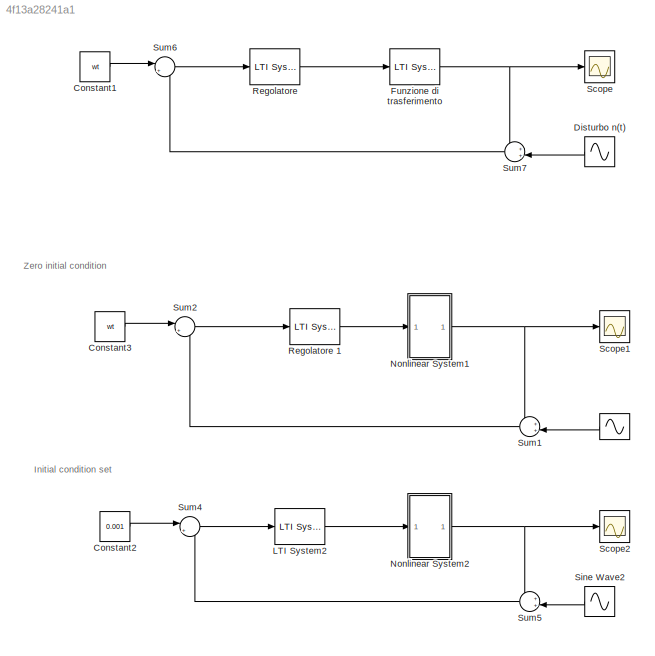
MODEL slx_4f13a28241a1
KIND model
CONFIG AbsTol = auto
CONFIG EnableMultiTasking = off
CONFIG FixedStep = auto
CONFIG MaxStep = auto
CONFIG MinStep = auto
CONFIG RelTol = 1e-3
CONFIG SampleTimeConstraint = Unconstrained
CONFIG Solver = VariableStepAuto
CONFIG SolverName = VariableStepAuto
CONFIG StartTime = 0.0
CONFIG StopTime = 50
BLOCK [Sin]  
  Amplitude = A_n
  Frequency = w_n
  Ports = [0, 1]
  SampleTime = 0
BLOCK [Constant] Constant1
  Value = wt
BLOCK [Constant] Constant2
  Value = 0.001
BLOCK [Constant] Constant3
  Value = wt
BLOCK [Sin] Disturbo n(t)
  Amplitude = A_n
  Frequency = w_n
  Ports = [0, 1]
  SampleTime = 0
BLOCK [Reference] Funzione di trasferimento  REF=cstblocks/LTI System
  Ports = [1, 1]
  SourceBlock = cstblocks/LTI System
  SourceProductBaseCode = CT
  SourceProductName = Control System Toolbox
  SourceType = LTI Block
BLOCK [Reference] LTI System2  REF=cstblocks/LTI System
  Ports = [1, 1]
  SourceBlock = cstblocks/LTI System
  SourceProductBaseCode = CT
  SourceProductName = Control System Toolbox
  SourceType = LTI Block
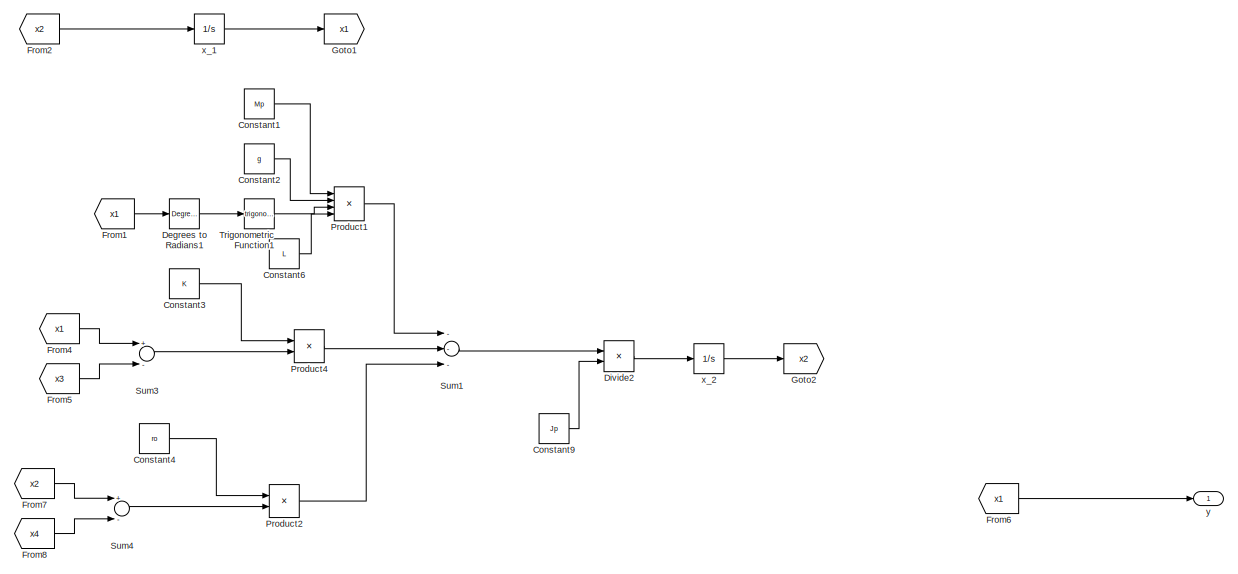
[diagram: Nonlinear System1 - part 1/3, full width, top band]
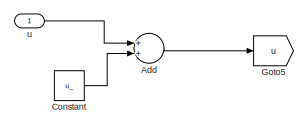
[diagram: Nonlinear System1 - part 2/3, middle left region]
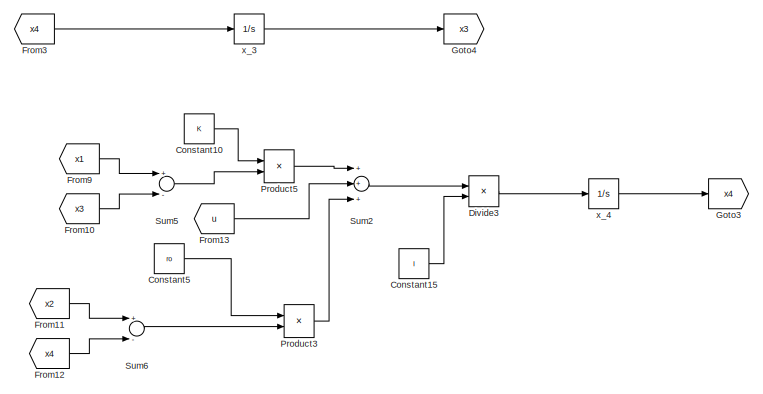
[diagram: Nonlinear System1 - part 3/3, bottom center region]
BLOCK [SubSystem] Nonlinear System1
  Ports = [1, 1]
  RequestExecContextInheritance = off
BLOCK [Sum] Nonlinear System1/Add
  InputSameDT = off
  OutDataTypeStr = Inherit: Inherit via internal rule
  Ports = [2, 1]
  SaturateOnIntegerOverflow = off
BLOCK [Constant] Nonlinear System1/Constant
  Value = u_
BLOCK [Constant] Nonlinear System1/Constant1
  Value = Mp
BLOCK [Constant] Nonlinear System1/Constant10
  Value = K
BLOCK [Constant] Nonlinear System1/Constant15
  Value = I
BLOCK [Constant] Nonlinear System1/Constant2
  Value = g
BLOCK [Constant] Nonlinear System1/Constant3
  Value = K
BLOCK [Constant] Nonlinear System1/Constant4
  Value = ro
BLOCK [Constant] Nonlinear System1/Constant5
  Value = ro
BLOCK [Constant] Nonlinear System1/Constant6
  Value = L
BLOCK [Constant] Nonlinear System1/Constant9
  Value = Jp
BLOCK [Reference] Nonlinear System1/Degrees to Radians1  REF=simulink_extras/Transformations/Degrees to
Radians
  Ports = [1, 1]
  SourceBlock = simulink_extras/Transformations/Degrees to\nRadians
  SourceProductBaseCode = SL
  SourceProductName = Simulink
  SourceType = DegreesToRadians
BLOCK [Product] Nonlinear System1/Divide2
  InputSameDT = off
  Inputs = */
  OutDataTypeStr = Inherit: Inherit via internal rule
  Ports = [2, 1]
  RndMeth = Floor
  SaturateOnIntegerOverflow = off
BLOCK [Product] Nonlinear System1/Divide3
  InputSameDT = off
  Inputs = */
  OutDataTypeStr = Inherit: Inherit via internal rule
  Ports = [2, 1]
  RndMeth = Floor
  SaturateOnIntegerOverflow = off
BLOCK [From] Nonlinear System1/From1
  GotoTag = x1
BLOCK [From] Nonlinear System1/From10
  GotoTag = x3
BLOCK [From] Nonlinear System1/From11
  GotoTag = x2
BLOCK [From] Nonlinear System1/From12
  GotoTag = x4
BLOCK [From] Nonlinear System1/From13
  GotoTag = u
BLOCK [From] Nonlinear System1/From2
  GotoTag = x2
BLOCK [From] Nonlinear System1/From3
  GotoTag = x4
BLOCK [From] Nonlinear System1/From4
  GotoTag = x1
BLOCK [From] Nonlinear System1/From5
  GotoTag = x3
BLOCK [From] Nonlinear System1/From6
  GotoTag = x1
BLOCK [From] Nonlinear System1/From7
  GotoTag = x2
BLOCK [From] Nonlinear System1/From8
  GotoTag = x4
BLOCK [From] Nonlinear System1/From9
  GotoTag = x1
BLOCK [Goto] Nonlinear System1/Goto1
  GotoTag = x1
BLOCK [Goto] Nonlinear System1/Goto2
  GotoTag = x2
BLOCK [Goto] Nonlinear System1/Goto3
  GotoTag = x4
BLOCK [Goto] Nonlinear System1/Goto4
  GotoTag = x3
BLOCK [Goto] Nonlinear System1/Goto5
  GotoTag = u
BLOCK [Product] Nonlinear System1/Product1
  InputSameDT = off
  Inputs = 4
  OutDataTypeStr = Inherit: Inherit via internal rule
  Ports = [4, 1]
  RndMeth = Floor
  SaturateOnIntegerOverflow = off
BLOCK [Product] Nonlinear System1/Product2
  InputSameDT = off
  OutDataTypeStr = Inherit: Inherit via internal rule
  Ports = [2, 1]
  RndMeth = Floor
  SaturateOnIntegerOverflow = off
BLOCK [Product] Nonlinear System1/Product3
  InputSameDT = off
  OutDataTypeStr = Inherit: Inherit via internal rule
  Ports = [2, 1]
  RndMeth = Floor
  SaturateOnIntegerOverflow = off
BLOCK [Product] Nonlinear System1/Product4
  InputSameDT = off
  OutDataTypeStr = Inherit: Inherit via internal rule
  Ports = [2, 1]
  RndMeth = Floor
  SaturateOnIntegerOverflow = off
BLOCK [Product] Nonlinear System1/Product5
  InputSameDT = off
  OutDataTypeStr = Inherit: Inherit via internal rule
  Ports = [2, 1]
  RndMeth = Floor
  SaturateOnIntegerOverflow = off
BLOCK [Sum] Nonlinear System1/Sum1
  InputSameDT = off
  Inputs = ---
  OutDataTypeStr = Inherit: Inherit via internal rule
  Ports = [3, 1]
  SaturateOnIntegerOverflow = off
BLOCK [Sum] Nonlinear System1/Sum2
  InputSameDT = off
  Inputs = +++
  OutDataTypeStr = Inherit: Inherit via internal rule
  Ports = [3, 1]
  SaturateOnIntegerOverflow = off
BLOCK [Sum] Nonlinear System1/Sum3
  InputSameDT = off
  Inputs = +-
  OutDataTypeStr = Inherit: Inherit via internal rule
  Ports = [2, 1]
  SaturateOnIntegerOverflow = off
BLOCK [Sum] Nonlinear System1/Sum4
  InputSameDT = off
  Inputs = +-
  OutDataTypeStr = Inherit: Inherit via internal rule
  Ports = [2, 1]
  SaturateOnIntegerOverflow = off
BLOCK [Sum] Nonlinear System1/Sum5
  InputSameDT = off
  Inputs = +-
  OutDataTypeStr = Inherit: Inherit via internal rule
  Ports = [2, 1]
  SaturateOnIntegerOverflow = off
BLOCK [Sum] Nonlinear System1/Sum6
  InputSameDT = off
  Inputs = +-
  OutDataTypeStr = Inherit: Inherit via internal rule
  Ports = [2, 1]
  SaturateOnIntegerOverflow = off
BLOCK [Trigonometry] Nonlinear System1/Trigonometric Function1
  Ports = [1, 1]
BLOCK [Inport] Nonlinear System1/u
  IconDisplay = Port number
BLOCK [Integrator] Nonlinear System1/x_1
  InitialCondition = x_1g
  Ports = [1, 1]
BLOCK [Integrator] Nonlinear System1/x_2 
  Ports = [1, 1]
BLOCK [Integrator] Nonlinear System1/x_3
  InitialCondition = x_3
  Ports = [1, 1]
BLOCK [Integrator] Nonlinear System1/x_4
  Ports = [1, 1]
BLOCK [Outport] Nonlinear System1/y
  IconDisplay = Port number
  VectorParamsAs1DForOutWhenUnconnected = off
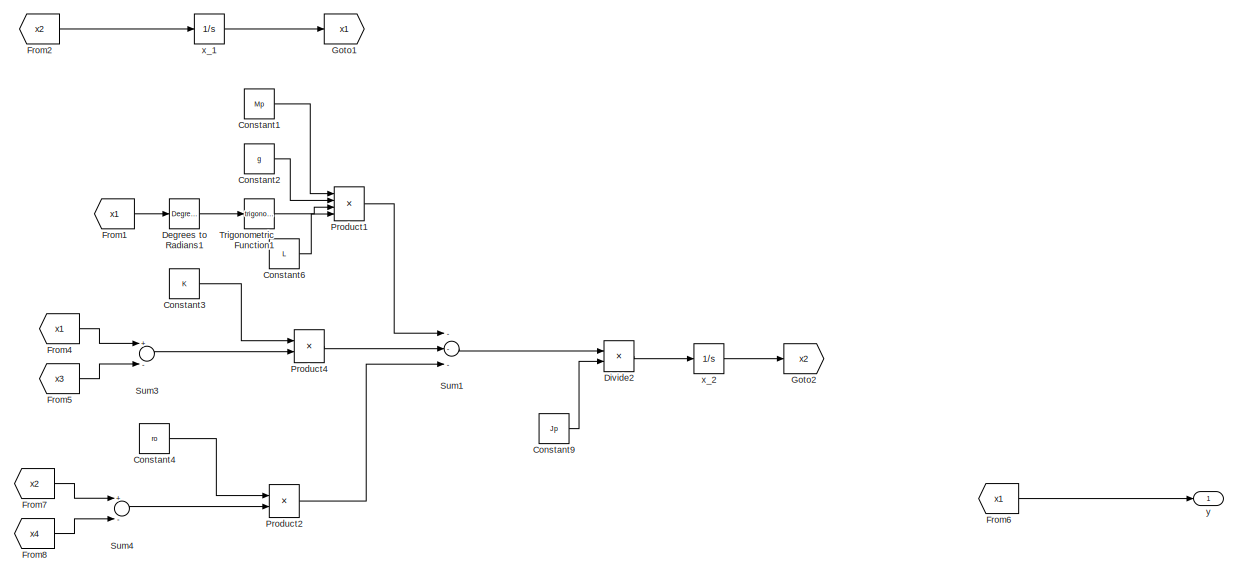
[diagram: Nonlinear System2 - part 1/3, full width, top band]
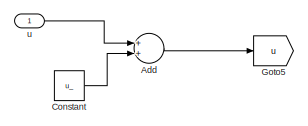
[diagram: Nonlinear System2 - part 2/3, middle left region]
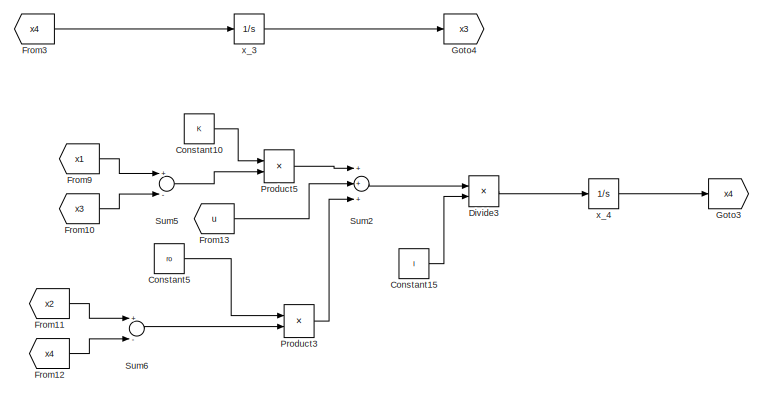
[diagram: Nonlinear System2 - part 3/3, bottom center region]
BLOCK [SubSystem] Nonlinear System2
  Ports = [1, 1]
  RequestExecContextInheritance = off
BLOCK [Sum] Nonlinear System2/Add
  InputSameDT = off
  OutDataTypeStr = Inherit: Inherit via internal rule
  Ports = [2, 1]
  SaturateOnIntegerOverflow = off
BLOCK [Constant] Nonlinear System2/Constant
  Value = u_
BLOCK [Constant] Nonlinear System2/Constant1
  Value = Mp
BLOCK [Constant] Nonlinear System2/Constant10
  Value = K
BLOCK [Constant] Nonlinear System2/Constant15
  Value = I
BLOCK [Constant] Nonlinear System2/Constant2
  Value = g
BLOCK [Constant] Nonlinear System2/Constant3
  Value = K
BLOCK [Constant] Nonlinear System2/Constant4
  Value = ro
BLOCK [Constant] Nonlinear System2/Constant5
  Value = ro
BLOCK [Constant] Nonlinear System2/Constant6
  Value = L
BLOCK [Constant] Nonlinear System2/Constant9
  Value = Jp
BLOCK [Reference] Nonlinear System2/Degrees to Radians1  REF=simulink_extras/Transformations/Degrees to
Radians
  Ports = [1, 1]
  SourceBlock = simulink_extras/Transformations/Degrees to\nRadians
  SourceProductBaseCode = SL
  SourceProductName = Simulink
  SourceType = DegreesToRadians
BLOCK [Product] Nonlinear System2/Divide2
  InputSameDT = off
  Inputs = */
  OutDataTypeStr = Inherit: Inherit via internal rule
  Ports = [2, 1]
  RndMeth = Floor
  SaturateOnIntegerOverflow = off
BLOCK [Product] Nonlinear System2/Divide3
  InputSameDT = off
  Inputs = */
  OutDataTypeStr = Inherit: Inherit via internal rule
  Ports = [2, 1]
  RndMeth = Floor
  SaturateOnIntegerOverflow = off
BLOCK [From] Nonlinear System2/From1
  GotoTag = x1
BLOCK [From] Nonlinear System2/From10
  GotoTag = x3
BLOCK [From] Nonlinear System2/From11
  GotoTag = x2
BLOCK [From] Nonlinear System2/From12
  GotoTag = x4
BLOCK [From] Nonlinear System2/From13
  GotoTag = u
BLOCK [From] Nonlinear System2/From2
  GotoTag = x2
BLOCK [From] Nonlinear System2/From3
  GotoTag = x4
BLOCK [From] Nonlinear System2/From4
  GotoTag = x1
BLOCK [From] Nonlinear System2/From5
  GotoTag = x3
BLOCK [From] Nonlinear System2/From6
  GotoTag = x1
BLOCK [From] Nonlinear System2/From7
  GotoTag = x2
BLOCK [From] Nonlinear System2/From8
  GotoTag = x4
BLOCK [From] Nonlinear System2/From9
  GotoTag = x1
BLOCK [Goto] Nonlinear System2/Goto1
  GotoTag = x1
BLOCK [Goto] Nonlinear System2/Goto2
  GotoTag = x2
BLOCK [Goto] Nonlinear System2/Goto3
  GotoTag = x4
BLOCK [Goto] Nonlinear System2/Goto4
  GotoTag = x3
BLOCK [Goto] Nonlinear System2/Goto5
  GotoTag = u
BLOCK [Product] Nonlinear System2/Product1
  InputSameDT = off
  Inputs = 4
  OutDataTypeStr = Inherit: Inherit via internal rule
  Ports = [4, 1]
  RndMeth = Floor
  SaturateOnIntegerOverflow = off
BLOCK [Product] Nonlinear System2/Product2
  InputSameDT = off
  OutDataTypeStr = Inherit: Inherit via internal rule
  Ports = [2, 1]
  RndMeth = Floor
  SaturateOnIntegerOverflow = off
BLOCK [Product] Nonlinear System2/Product3
  InputSameDT = off
  OutDataTypeStr = Inherit: Inherit via internal rule
  Ports = [2, 1]
  RndMeth = Floor
  SaturateOnIntegerOverflow = off
BLOCK [Product] Nonlinear System2/Product4
  InputSameDT = off
  OutDataTypeStr = Inherit: Inherit via internal rule
  Ports = [2, 1]
  RndMeth = Floor
  SaturateOnIntegerOverflow = off
BLOCK [Product] Nonlinear System2/Product5
  InputSameDT = off
  OutDataTypeStr = Inherit: Inherit via internal rule
  Ports = [2, 1]
  RndMeth = Floor
  SaturateOnIntegerOverflow = off
BLOCK [Sum] Nonlinear System2/Sum1
  InputSameDT = off
  Inputs = ---
  OutDataTypeStr = Inherit: Inherit via internal rule
  Ports = [3, 1]
  SaturateOnIntegerOverflow = off
BLOCK [Sum] Nonlinear System2/Sum2
  InputSameDT = off
  Inputs = +++
  OutDataTypeStr = Inherit: Inherit via internal rule
  Ports = [3, 1]
  SaturateOnIntegerOverflow = off
BLOCK [Sum] Nonlinear System2/Sum3
  InputSameDT = off
  Inputs = +-
  OutDataTypeStr = Inherit: Inherit via internal rule
  Ports = [2, 1]
  SaturateOnIntegerOverflow = off
BLOCK [Sum] Nonlinear System2/Sum4
  InputSameDT = off
  Inputs = +-
  OutDataTypeStr = Inherit: Inherit via internal rule
  Ports = [2, 1]
  SaturateOnIntegerOverflow = off
BLOCK [Sum] Nonlinear System2/Sum5
  InputSameDT = off
  Inputs = +-
  OutDataTypeStr = Inherit: Inherit via internal rule
  Ports = [2, 1]
  SaturateOnIntegerOverflow = off
BLOCK [Sum] Nonlinear System2/Sum6
  InputSameDT = off
  Inputs = +-
  OutDataTypeStr = Inherit: Inherit via internal rule
  Ports = [2, 1]
  SaturateOnIntegerOverflow = off
BLOCK [Trigonometry] Nonlinear System2/Trigonometric Function1
  Ports = [1, 1]
BLOCK [Inport] Nonlinear System2/u
  IconDisplay = Port number
BLOCK [Integrator] Nonlinear System2/x_1
  InitialCondition = x_1g
  Ports = [1, 1]
BLOCK [Integrator] Nonlinear System2/x_2 
  Ports = [1, 1]
BLOCK [Integrator] Nonlinear System2/x_3
  InitialCondition = x_3
  Ports = [1, 1]
BLOCK [Integrator] Nonlinear System2/x_4
  Ports = [1, 1]
BLOCK [Outport] Nonlinear System2/y
  IconDisplay = Port number
  VectorParamsAs1DForOutWhenUnconnected = off
BLOCK [Reference] Regolatore   REF=cstblocks/LTI System
  Ports = [1, 1]
  SourceBlock = cstblocks/LTI System
  SourceProductBaseCode = CT
  SourceProductName = Control System Toolbox
  SourceType = LTI Block
BLOCK [Reference] Regolatore 1  REF=cstblocks/LTI System
  Ports = [1, 1]
  SourceBlock = cstblocks/LTI System
  SourceProductBaseCode = CT
  SourceProductName = Control System Toolbox
  SourceType = LTI Block
BLOCK [Scope] Scope 
  Floating = off
  NumInputPorts = 1
  Ports = [1]
  ScopeSpecificationString = Simulink.scopes.TimeScopeBlockCfg('CurrentConfiguration', extmgr.ConfigurationSet(extmgr.Configuration('Core','General UI',true),extmgr.Configuration('Core','Source UI',true),extmgr.Configuration('Sources','WiredSimulink',true,'DataLoggingVariableName','ScopeData2'),extmgr.Configuration('Visuals','Time Domain',true,'SerializedDisplays',{struct('MinYLimReal','4.99603','MaxYLimReal','5.00025','YLabe...<+1757ch>
BLOCK [Scope] Scope1
  Floating = off
  NumInputPorts = 1
  Ports = [1]
  ScopeSpecificationString = Simulink.scopes.TimeScopeBlockCfg('CurrentConfiguration', extmgr.ConfigurationSet(extmgr.Configuration('Core','General UI',true),extmgr.Configuration('Core','Source UI',true),extmgr.Configuration('Sources','WiredSimulink',true,'DataLoggingVariableName','ScopeData1'),extmgr.Configuration('Visuals','Time Domain',true,'SerializedDisplays',{struct('MinYLimReal','4.11551','MaxYLimReal','13.44341','YLab...<+1479ch>
BLOCK [Scope] Scope2
  Floating = off
  NumInputPorts = 1
  Ports = [1]
  ScopeSpecificationString = Simulink.scopes.TimeScopeBlockCfg('CurrentConfiguration', extmgr.ConfigurationSet(extmgr.Configuration('Core','General UI',true),extmgr.Configuration('Core','Source UI',true),extmgr.Configuration('Sources','WiredSimulink',true,'DataLoggingVariableName','ScopeData2'),extmgr.Configuration('Visuals','Time Domain',true,'SerializedDisplays',{struct('MinYLimReal','0.00087','MaxYLimReal','0.00114','YLabe...<+1472ch>
BLOCK [Sin] Sine Wave2
  Amplitude = 0
  Frequency = 0
  Ports = [0, 1]
  SampleTime = 0
BLOCK [Sum] Sum1
  IconShape = round
  InputSameDT = off
  Inputs = ++|
  OutDataTypeStr = Inherit: Inherit via internal rule
  Ports = [2, 1]
  SaturateOnIntegerOverflow = off
BLOCK [Sum] Sum2
  IconShape = round
  InputSameDT = off
  Inputs = |+-
  OutDataTypeStr = Inherit: Inherit via internal rule
  Ports = [2, 1]
  SaturateOnIntegerOverflow = off
BLOCK [Sum] Sum4
  IconShape = round
  InputSameDT = off
  Inputs = |+-
  OutDataTypeStr = Inherit: Inherit via internal rule
  Ports = [2, 1]
  SaturateOnIntegerOverflow = off
BLOCK [Sum] Sum5
  IconShape = round
  InputSameDT = off
  Inputs = ++|
  OutDataTypeStr = Inherit: Inherit via internal rule
  Ports = [2, 1]
  SaturateOnIntegerOverflow = off
BLOCK [Sum] Sum6
  IconShape = round
  InputSameDT = off
  Inputs = |+-
  OutDataTypeStr = Inherit: Inherit via internal rule
  Ports = [2, 1]
  SaturateOnIntegerOverflow = off
BLOCK [Sum] Sum7
  IconShape = round
  InputSameDT = off
  Inputs = ++|
  OutDataTypeStr = Inherit: Inherit via internal rule
  Ports = [2, 1]
  SaturateOnIntegerOverflow = off
ANNOTATION (root): Initial condition set
ANNOTATION (root): Zero initial condition
LINE  :1 -> Sum1:2
LINE Constant1:1 -> Sum6:1
LINE Constant2:1 -> Sum4:1
LINE Constant3:1 -> Sum2:1
LINE Disturbo n(t):1 -> Sum7:2
NET Funzione di trasferimento:1 -> Scope :1, Sum7:1
LINE LTI System2:1 -> Nonlinear System2:1
LINE Nonlinear System1/Add:1 -> Nonlinear System1/Goto5:1
LINE Nonlinear System1/Constant10:1 -> Nonlinear System1/Product5:1
LINE Nonlinear System1/Constant15:1 -> Nonlinear System1/Divide3:2
LINE Nonlinear System1/Constant1:1 -> Nonlinear System1/Product1:1
LINE Nonlinear System1/Constant2:1 -> Nonlinear System1/Product1:2
LINE Nonlinear System1/Constant3:1 -> Nonlinear System1/Product4:1
LINE Nonlinear System1/Constant4:1 -> Nonlinear System1/Product2:1
LINE Nonlinear System1/Constant5:1 -> Nonlinear System1/Product3:1
LINE Nonlinear System1/Constant6:1 -> Nonlinear System1/Product1:4
LINE Nonlinear System1/Constant9:1 -> Nonlinear System1/Divide2:2
LINE Nonlinear System1/Constant:1 -> Nonlinear System1/Add:2
LINE Nonlinear System1/Degrees to Radians1:1 -> Nonlinear System1/Trigonometric Function1:1
LINE Nonlinear System1/Divide2:1 -> Nonlinear System1/x_2 :1
LINE Nonlinear System1/Divide3:1 -> Nonlinear System1/x_4:1
LINE Nonlinear System1/From10:1 -> Nonlinear System1/Sum5:2
LINE Nonlinear System1/From11:1 -> Nonlinear System1/Sum6:1
LINE Nonlinear System1/From12:1 -> Nonlinear System1/Sum6:2
LINE Nonlinear System1/From13:1 -> Nonlinear System1/Sum2:2
LINE Nonlinear System1/From1:1 -> Nonlinear System1/Degrees to Radians1:1
LINE Nonlinear System1/From2:1 -> Nonlinear System1/x_1:1
LINE Nonlinear System1/From3:1 -> Nonlinear System1/x_3:1
LINE Nonlinear System1/From4:1 -> Nonlinear System1/Sum3:1
LINE Nonlinear System1/From5:1 -> Nonlinear System1/Sum3:2
LINE Nonlinear System1/From6:1 -> Nonlinear System1/y:1
LINE Nonlinear System1/From7:1 -> Nonlinear System1/Sum4:1
LINE Nonlinear System1/From8:1 -> Nonlinear System1/Sum4:2
LINE Nonlinear System1/From9:1 -> Nonlinear System1/Sum5:1
LINE Nonlinear System1/Product1:1 -> Nonlinear System1/Sum1:1
LINE Nonlinear System1/Product2:1 -> Nonlinear System1/Sum1:3
LINE Nonlinear System1/Product3:1 -> Nonlinear System1/Sum2:3
LINE Nonlinear System1/Product4:1 -> Nonlinear System1/Sum1:2
LINE Nonlinear System1/Product5:1 -> Nonlinear System1/Sum2:1
LINE Nonlinear System1/Sum1:1 -> Nonlinear System1/Divide2:1
LINE Nonlinear System1/Sum2:1 -> Nonlinear System1/Divide3:1
LINE Nonlinear System1/Sum3:1 -> Nonlinear System1/Product4:2
LINE Nonlinear System1/Sum4:1 -> Nonlinear System1/Product2:2
LINE Nonlinear System1/Sum5:1 -> Nonlinear System1/Product5:2
LINE Nonlinear System1/Sum6:1 -> Nonlinear System1/Product3:2
LINE Nonlinear System1/Trigonometric Function1:1 -> Nonlinear System1/Product1:3
LINE Nonlinear System1/u:1 -> Nonlinear System1/Add:1
LINE Nonlinear System1/x_1:1 -> Nonlinear System1/Goto1:1
LINE Nonlinear System1/x_2 :1 -> Nonlinear System1/Goto2:1
LINE Nonlinear System1/x_3:1 -> Nonlinear System1/Goto4:1
LINE Nonlinear System1/x_4:1 -> Nonlinear System1/Goto3:1
NET Nonlinear System1:1 -> Scope1:1, Sum1:1
LINE Nonlinear System2/Add:1 -> Nonlinear System2/Goto5:1
LINE Nonlinear System2/Constant10:1 -> Nonlinear System2/Product5:1
LINE Nonlinear System2/Constant15:1 -> Nonlinear System2/Divide3:2
LINE Nonlinear System2/Constant1:1 -> Nonlinear System2/Product1:1
LINE Nonlinear System2/Constant2:1 -> Nonlinear System2/Product1:2
LINE Nonlinear System2/Constant3:1 -> Nonlinear System2/Product4:1
LINE Nonlinear System2/Constant4:1 -> Nonlinear System2/Product2:1
LINE Nonlinear System2/Constant5:1 -> Nonlinear System2/Product3:1
LINE Nonlinear System2/Constant6:1 -> Nonlinear System2/Product1:4
LINE Nonlinear System2/Constant9:1 -> Nonlinear System2/Divide2:2
LINE Nonlinear System2/Constant:1 -> Nonlinear System2/Add:2
LINE Nonlinear System2/Degrees to Radians1:1 -> Nonlinear System2/Trigonometric Function1:1
LINE Nonlinear System2/Divide2:1 -> Nonlinear System2/x_2 :1
LINE Nonlinear System2/Divide3:1 -> Nonlinear System2/x_4:1
LINE Nonlinear System2/From10:1 -> Nonlinear System2/Sum5:2
LINE Nonlinear System2/From11:1 -> Nonlinear System2/Sum6:1
LINE Nonlinear System2/From12:1 -> Nonlinear System2/Sum6:2
LINE Nonlinear System2/From13:1 -> Nonlinear System2/Sum2:2
LINE Nonlinear System2/From1:1 -> Nonlinear System2/Degrees to Radians1:1
LINE Nonlinear System2/From2:1 -> Nonlinear System2/x_1:1
LINE Nonlinear System2/From3:1 -> Nonlinear System2/x_3:1
LINE Nonlinear System2/From4:1 -> Nonlinear System2/Sum3:1
LINE Nonlinear System2/From5:1 -> Nonlinear System2/Sum3:2
LINE Nonlinear System2/From6:1 -> Nonlinear System2/y:1
LINE Nonlinear System2/From7:1 -> Nonlinear System2/Sum4:1
LINE Nonlinear System2/From8:1 -> Nonlinear System2/Sum4:2
LINE Nonlinear System2/From9:1 -> Nonlinear System2/Sum5:1
LINE Nonlinear System2/Product1:1 -> Nonlinear System2/Sum1:1
LINE Nonlinear System2/Product2:1 -> Nonlinear System2/Sum1:3
LINE Nonlinear System2/Product3:1 -> Nonlinear System2/Sum2:3
LINE Nonlinear System2/Product4:1 -> Nonlinear System2/Sum1:2
LINE Nonlinear System2/Product5:1 -> Nonlinear System2/Sum2:1
LINE Nonlinear System2/Sum1:1 -> Nonlinear System2/Divide2:1
LINE Nonlinear System2/Sum2:1 -> Nonlinear System2/Divide3:1
LINE Nonlinear System2/Sum3:1 -> Nonlinear System2/Product4:2
LINE Nonlinear System2/Sum4:1 -> Nonlinear System2/Product2:2
LINE Nonlinear System2/Sum5:1 -> Nonlinear System2/Product5:2
LINE Nonlinear System2/Sum6:1 -> Nonlinear System2/Product3:2
LINE Nonlinear System2/Trigonometric Function1:1 -> Nonlinear System2/Product1:3
LINE Nonlinear System2/u:1 -> Nonlinear System2/Add:1
LINE Nonlinear System2/x_1:1 -> Nonlinear System2/Goto1:1
LINE Nonlinear System2/x_2 :1 -> Nonlinear System2/Goto2:1
LINE Nonlinear System2/x_3:1 -> Nonlinear System2/Goto4:1
LINE Nonlinear System2/x_4:1 -> Nonlinear System2/Goto3:1
NET Nonlinear System2:1 -> Scope2:1, Sum5:1
LINE Regolatore 1:1 -> Nonlinear System1:1
LINE Regolatore :1 -> Funzione di trasferimento:1
LINE Sine Wave2:1 -> Sum5:2
LINE Sum1:1 -> Sum2:2
LINE Sum2:1 -> Regolatore 1:1
LINE Sum4:1 -> LTI System2:1
LINE Sum5:1 -> Sum4:2
LINE Sum6:1 -> Regolatore :1
LINE Sum7:1 -> Sum6:2
note: NET lines group one-source signal fan-out (src -> all destinations, sorted); 1:1 wires keep LINE
